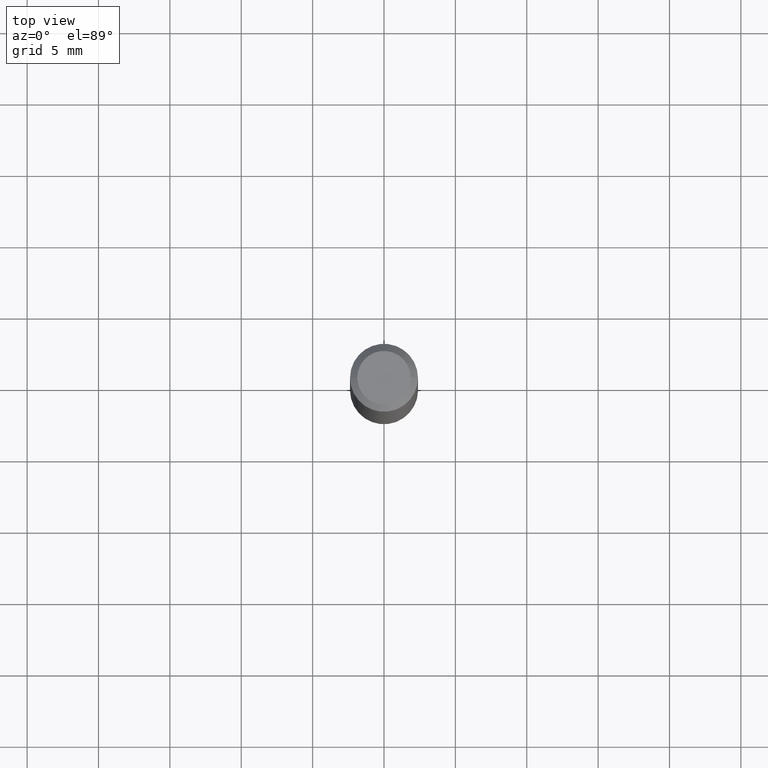
[diagram: clean part render]
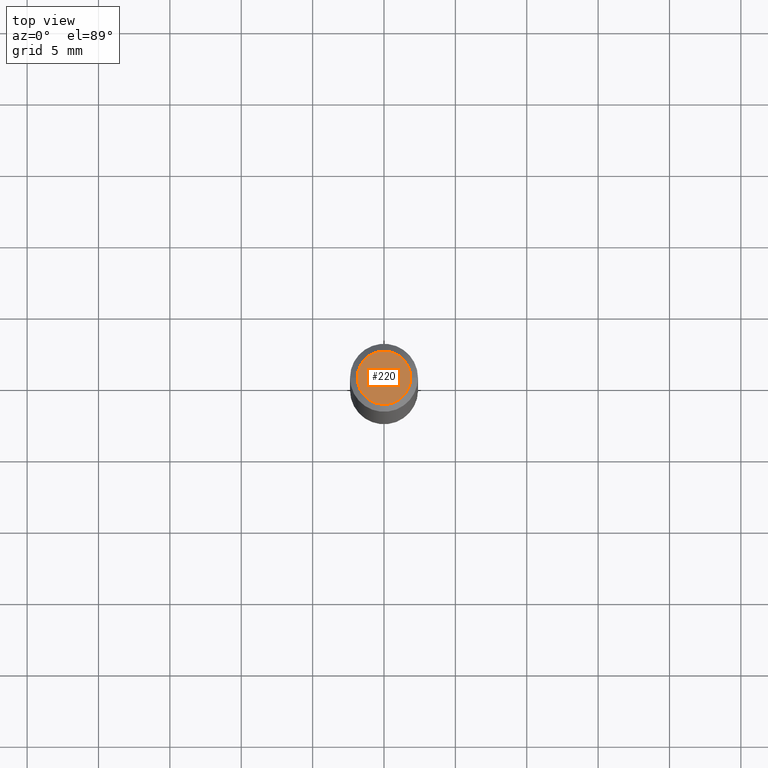
[diagram: same view with one face highlighted and labeled with its STEP entity id]
A machine part, top view. The second image highlights one B-rep face of the part: STEP entity #220.
In plain terms, the highlighted planar face has unit normal (0, -0, -1).
Its self-contained STEP definition (entity closure, byte-faithful):
#13 = EDGE_LOOP ( 'NONE', ( #94, #32 ) ) ;
#23 = CARTESIAN_POINT ( 'NONE',  ( 5.149934974793625841E-16, 0.07375000000000006550, -2.681680299649332462E-16 ) ) ;
#32 = ORIENTED_EDGE ( 'NONE', *, *, #201, .T. ) ;
#57 = CIRCLE ( 'NONE', #257, 0.07375000000000006550 ) ;
#72 = AXIS2_PLACEMENT_3D ( 'NONE', #23, #356, #236 ) ;
#94 = ORIENTED_EDGE ( 'NONE', *, *, #409, .T. ) ;
#168 = FACE_OUTER_BOUND ( 'NONE', #13, .T. ) ;
#195 = DIRECTION ( 'NONE',  ( -2.445468806185136597E-29, 3.491481338843145583E-15, 1.000000000000000000 ) ) ;
#201 = EDGE_CURVE ( 'NONE', #258, #322, #282, .T. ) ;
#220 = ADVANCED_FACE ( 'NONE', ( #168 ), #238, .F. ) ;
#223 = AXIS2_PLACEMENT_3D ( 'NONE', #390, #232, #307 ) ;
#228 = DIRECTION ( 'NONE',  ( 1.000000000000000000, -6.982962677686265922E-15, 4.878439923190939118E-29 ) ) ;
#232 = DIRECTION ( 'NONE',  ( -2.445468806185136597E-29, 3.491481338843145583E-15, 1.000000000000000000 ) ) ;
#236 = DIRECTION ( 'NONE',  ( -1.000000000000000000, 6.982962677686265922E-15, -4.876176775795935793E-29 ) ) ;
#238 = PLANE ( 'NONE',  #72 ) ;
#257 = AXIS2_PLACEMENT_3D ( 'NONE', #404, #195, #228 ) ;
#258 = VERTEX_POINT ( 'NONE', #269 ) ;
#269 = CARTESIAN_POINT ( 'NONE',  ( 0.07375000000000006550, -6.094815207017975989E-16, -2.134256245049812442E-17 ) ) ;
#282 = CIRCLE ( 'NONE', #223, 0.07375000000000006550 ) ;
#307 = DIRECTION ( 'NONE',  ( 1.000000000000000000, -6.982962677686265922E-15, 4.878439923190939118E-29 ) ) ;
#322 = VERTEX_POINT ( 'NONE', #324 ) ;
#324 = CARTESIAN_POINT ( 'NONE',  ( -0.07375000000000006550, 5.499083108677936415E-16, -2.134256245050577883E-17 ) ) ;
#356 = DIRECTION ( 'NONE',  ( 2.438088387897960049E-29, -3.491481338843145188E-15, -1.000000000000000000 ) ) ;
#390 = CARTESIAN_POINT ( 'NONE',  ( 5.219257071676098903E-46, -7.451715851902235727E-32, -2.134256245050205639E-17 ) ) ;
#404 = CARTESIAN_POINT ( 'NONE',  ( 5.219257071676098903E-46, -7.451715851902235727E-32, -2.134256245050205639E-17 ) ) ;
#409 = EDGE_CURVE ( 'NONE', #322, #258, #57, .T. ) ;